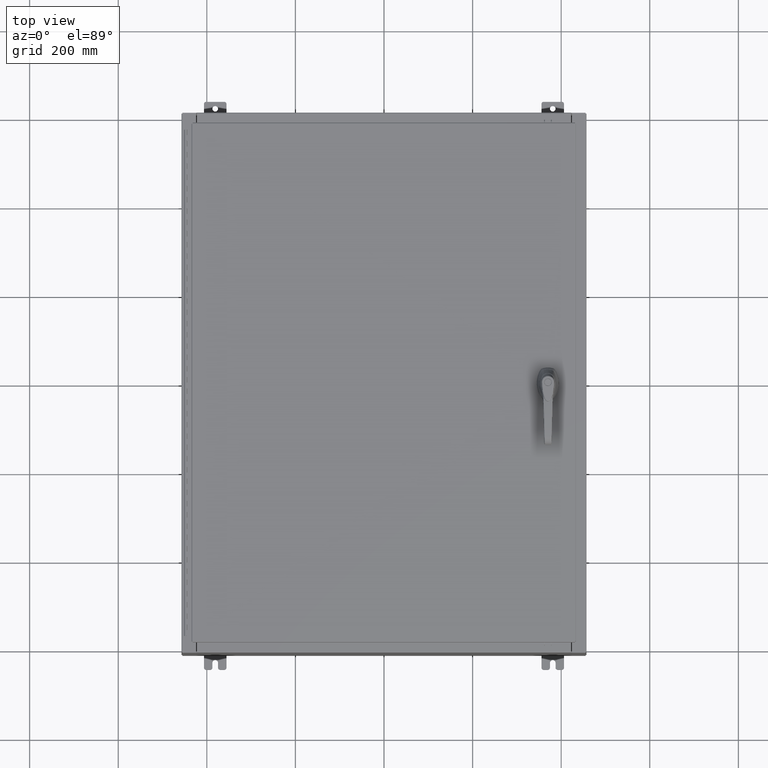
[diagram: clean part render]
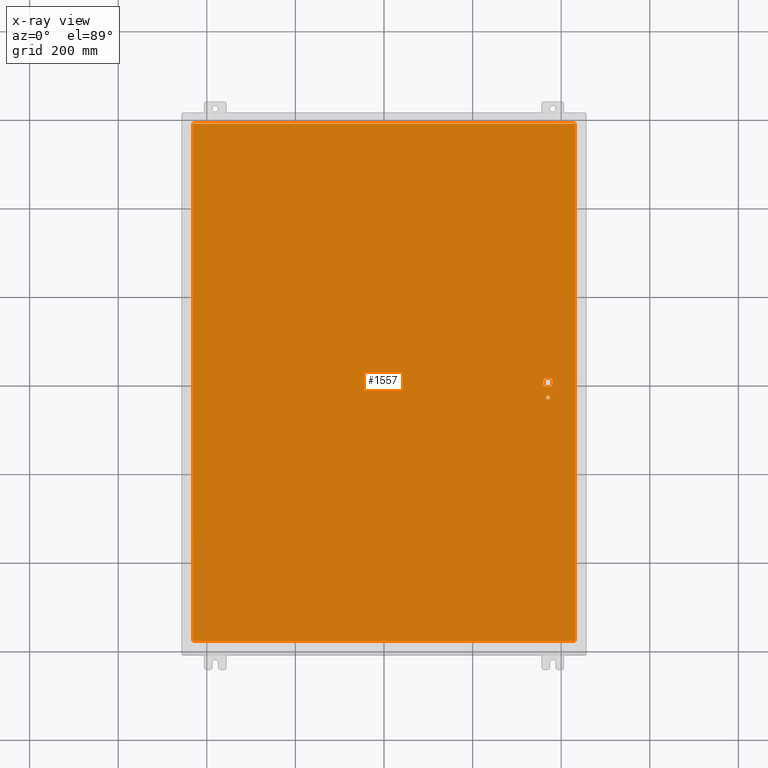
[diagram: x-ray — body ghosted, one internal face saturated and labeled with its STEP entity id]
A machine part, top view, then the same camera in x-ray: the body is ghosted and one INTERNAL B-rep face — a face not visible from any outside direction — is saturated and labeled: STEP entity #1557.
In plain terms, the highlighted planar face has unit normal (0, 0, -1).
Its self-contained STEP definition (entity closure, byte-faithful):
#1557 = ADVANCED_FACE ( 'NONE', ( #18862, #22107, #70731 ), #69592, .T. ) ;
#3670 = CARTESIAN_POINT ( 'NONE',  ( 0.0000000000000000000, 0.4029999999999252000, -0.07470000000000003000 ) ) ;
#4563 = CARTESIAN_POINT ( 'NONE',  ( -16.99029999999999400, 23.00630000000001000, -0.07470000000000129300 ) ) ;
#4565 = ORIENTED_EDGE ( 'NONE', *, *, #99361, .T. ) ;
#4814 = CARTESIAN_POINT ( 'NONE',  ( 14.57799999999999900, 0.0000000000000000000, -0.07470000000000003000 ) ) ;
#4945 = CARTESIAN_POINT ( 'NONE',  ( 14.37777262924369000, 0.4029999999999252000, -0.07470000000000003000 ) ) ;
#6797 = ORIENTED_EDGE ( 'NONE', *, *, #58652, .F. ) ;
#7295 = AXIS2_PLACEMENT_3D ( 'NONE', #115002, #52793, #125378 ) ;
#7421 = LINE ( 'NONE', #46599, #59254 ) ;
#7866 = CARTESIAN_POINT ( 'NONE',  ( 0.0000000000000000000, 0.0000000000000000000, -0.07470000000000000300 ) ) ;
#9014 = DIRECTION ( 'NONE',  ( -0.0000000000000000000, -0.0000000000000000000, 1.000000000000000000 ) ) ;
#9688 = EDGE_CURVE ( 'NONE', #9892, #12808, #122731, .T. ) ;
#9892 = VERTEX_POINT ( 'NONE', #93713 ) ;
#11298 = ORIENTED_EDGE ( 'NONE', *, *, #41066, .T. ) ;
#11322 = CARTESIAN_POINT ( 'NONE',  ( 16.99029999999999800, -23.00630000000000300, -0.07470000000000019700 ) ) ;
#11573 = ORIENTED_EDGE ( 'NONE', *, *, #44347, .F. ) ;
#12808 = VERTEX_POINT ( 'NONE', #126245 ) ;
#14811 = DIRECTION ( 'NONE',  ( 0.0000000000000000000, 0.0000000000000000000, -1.000000000000000000 ) ) ;
#15095 = EDGE_LOOP ( 'NONE', ( #4565, #83565 ) ) ;
#15178 = DIRECTION ( 'NONE',  ( -1.000000000000000000, -1.776356839400246700E-015, 0.0000000000000000000 ) ) ;
#16015 = EDGE_CURVE ( 'NONE', #86522, #125030, #7421, .T. ) ;
#18482 = ORIENTED_EDGE ( 'NONE', *, *, #65615, .T. ) ;
#18862 = FACE_BOUND ( 'NONE', #15095, .T. ) ;
#19869 = LINE ( 'NONE', #4563, #99295 ) ;
#22107 = FACE_OUTER_BOUND ( 'NONE', #57688, .T. ) ;
#22426 = CARTESIAN_POINT ( 'NONE',  ( 14.98099999999992700, 0.2002273707563075900, -0.07470000000000003000 ) ) ;
#25296 = ORIENTED_EDGE ( 'NONE', *, *, #98412, .T. ) ;
#27079 = CIRCLE ( 'NONE', #129720, 0.4499999999999168000 ) ;
#30964 = CARTESIAN_POINT ( 'NONE',  ( -16.99029999999999800, -23.00630000000000300, -0.07469999999999804600 ) ) ;
#31443 = CARTESIAN_POINT ( 'NONE',  ( 16.99029999999999800, 23.00630000000000300, -0.07470000000000000300 ) ) ;
#37334 = VECTOR ( 'NONE', #105379, 39.37007874015748100 ) ;
#37367 = CARTESIAN_POINT ( 'NONE',  ( 14.57799999999999900, -1.338000000000000100, -0.07470000000000003000 ) ) ;
#37752 = CARTESIAN_POINT ( 'NONE',  ( 14.17500000000007400, -0.2002273707563079800, -0.07470000000000003000 ) ) ;
#40733 = VECTOR ( 'NONE', #134586, 39.37007874015748100 ) ;
#41066 = EDGE_CURVE ( 'NONE', #57378, #57938, #49019, .T. ) ;
#41809 = VERTEX_POINT ( 'NONE', #31443 ) ;
#42478 = CARTESIAN_POINT ( 'NONE',  ( 14.98099999999992700, -0.2002273707563067300, -0.07470000000000003000 ) ) ;
#42849 = DIRECTION ( 'NONE',  ( -0.0000000000000000000, -0.0000000000000000000, 1.000000000000000000 ) ) ;
#43058 = CIRCLE ( 'NONE', #65418, 0.1715000000000011500 ) ;
#43689 = VECTOR ( 'NONE', #65702, 39.37007874015748100 ) ;
#44347 = EDGE_CURVE ( 'NONE', #98701, #41809, #100544, .T. ) ;
#45898 = ORIENTED_EDGE ( 'NONE', *, *, #54094, .T. ) ;
#46599 = CARTESIAN_POINT ( 'NONE',  ( 14.98099999999992700, 8.175868191945441800E-014, -0.07470000000000003000 ) ) ;
#47735 = DIRECTION ( 'NONE',  ( -1.000000000000000000, 0.0000000000000000000, 0.0000000000000000000 ) ) ;
#49019 = LINE ( 'NONE', #65171, #100911 ) ;
#49964 = EDGE_CURVE ( 'NONE', #131717, #98701, #109518, .T. ) ;
#50587 = CARTESIAN_POINT ( 'NONE',  ( -16.99029999999999400, 23.00630000000000300, -0.07470000000000000300 ) ) ;
#51784 = DIRECTION ( 'NONE',  ( 1.000000000000000000, -0.0000000000000000000, -0.0000000000000000000 ) ) ;
#52107 = CARTESIAN_POINT ( 'NONE',  ( 14.77822737075630900, -0.4029999999999252000, -0.07470000000000003000 ) ) ;
#52793 = DIRECTION ( 'NONE',  ( -0.0000000000000000000, -0.0000000000000000000, 1.000000000000000000 ) ) ;
#52844 = ORIENTED_EDGE ( 'NONE', *, *, #16015, .F. ) ;
#54094 = EDGE_CURVE ( 'NONE', #79332, #126265, #68222, .T. ) ;
#55651 = EDGE_CURVE ( 'NONE', #120661, #72681, #126458, .T. ) ;
#55661 = DIRECTION ( 'NONE',  ( -0.0000000000000000000, -0.0000000000000000000, 1.000000000000000000 ) ) ;
#57378 = VERTEX_POINT ( 'NONE', #108617 ) ;
#57688 = EDGE_LOOP ( 'NONE', ( #11573, #120079, #6797, #78938 ) ) ;
#57938 = VERTEX_POINT ( 'NONE', #37752 ) ;
#58652 = EDGE_CURVE ( 'NONE', #62963, #131717, #19869, .T. ) ;
#59254 = VECTOR ( 'NONE', #98261, 39.37007874015748100 ) ;
#61111 = EDGE_CURVE ( 'NONE', #41809, #62963, #95687, .T. ) ;
#62152 = ORIENTED_EDGE ( 'NONE', *, *, #128223, .T. ) ;
#62963 = VERTEX_POINT ( 'NONE', #50587 ) ;
#65171 = CARTESIAN_POINT ( 'NONE',  ( 14.17500000000007400, 0.0000000000000000000, -0.07470000000000003000 ) ) ;
#65291 = CIRCLE ( 'NONE', #7295, 0.4499999999999168000 ) ;
#65418 = AXIS2_PLACEMENT_3D ( 'NONE', #37367, #109911, #47735 ) ;
#65615 = EDGE_CURVE ( 'NONE', #72681, #57378, #27079, .T. ) ;
#65702 = DIRECTION ( 'NONE',  ( -1.000000000000000000, 0.0000000000000000000, 0.0000000000000000000 ) ) ;
#66569 = DIRECTION ( 'NONE',  ( 0.0000000000000000000, -1.000000000000000000, 0.0000000000000000000 ) ) ;
#68222 = LINE ( 'NONE', #122382, #40733 ) ;
#69592 = PLANE ( 'NONE',  #79716 ) ;
#69953 = CIRCLE ( 'NONE', #119396, 0.4499999999999168000 ) ;
#70731 = FACE_BOUND ( 'NONE', #126021, .T. ) ;
#71045 = CARTESIAN_POINT ( 'NONE',  ( 14.57799999999999900, -1.338000000000000100, -0.07470000000000003000 ) ) ;
#72681 = VERTEX_POINT ( 'NONE', #4945 ) ;
#73362 = DIRECTION ( 'NONE',  ( 0.0000000000000000000, 1.000000000000000000, 0.0000000000000000000 ) ) ;
#77268 = DIRECTION ( 'NONE',  ( -0.0000000000000000000, -0.0000000000000000000, 1.000000000000000000 ) ) ;
#78619 = AXIS2_PLACEMENT_3D ( 'NONE', #71045, #9014, #81481 ) ;
#78938 = ORIENTED_EDGE ( 'NONE', *, *, #61111, .F. ) ;
#79332 = VERTEX_POINT ( 'NONE', #82481 ) ;
#79716 = AXIS2_PLACEMENT_3D ( 'NONE', #7866, #14811, #119564 ) ;
#81481 = DIRECTION ( 'NONE',  ( -1.000000000000000000, 0.0000000000000000000, 0.0000000000000000000 ) ) ;
#82481 = CARTESIAN_POINT ( 'NONE',  ( 14.37777262924369000, -0.4029999999999250300, -0.07470000000000003000 ) ) ;
#83565 = ORIENTED_EDGE ( 'NONE', *, *, #9688, .T. ) ;
#86484 = EDGE_CURVE ( 'NONE', #86522, #120661, #65291, .T. ) ;
#86522 = VERTEX_POINT ( 'NONE', #22426 ) ;
#93713 = CARTESIAN_POINT ( 'NONE',  ( 14.40649999999999800, -1.338000000000000100, -0.07470000000000003000 ) ) ;
#94935 = CARTESIAN_POINT ( 'NONE',  ( 16.99029999999999800, 23.00630000000001000, -0.07469999999999804600 ) ) ;
#95687 = LINE ( 'NONE', #94935, #37334 ) ;
#98261 = DIRECTION ( 'NONE',  ( 5.457491617345625800E-015, -1.000000000000000000, 0.0000000000000000000 ) ) ;
#98412 = EDGE_CURVE ( 'NONE', #126265, #125030, #122726, .T. ) ;
#98701 = VERTEX_POINT ( 'NONE', #103520 ) ;
#99295 = VECTOR ( 'NONE', #66569, 39.37007874015748100 ) ;
#99361 = EDGE_CURVE ( 'NONE', #12808, #9892, #43058, .T. ) ;
#100544 = LINE ( 'NONE', #11322, #128199 ) ;
#100911 = VECTOR ( 'NONE', #116959, 39.37007874015748100 ) ;
#102002 = ORIENTED_EDGE ( 'NONE', *, *, #86484, .T. ) ;
#103520 = CARTESIAN_POINT ( 'NONE',  ( 16.99029999999999800, -23.00630000000000000, -0.07470000000000000300 ) ) ;
#104947 = CARTESIAN_POINT ( 'NONE',  ( 14.57799999999999900, 0.0000000000000000000, -0.07470000000000003000 ) ) ;
#105379 = DIRECTION ( 'NONE',  ( -1.000000000000000000, -0.0000000000000000000, -0.0000000000000000000 ) ) ;
#108617 = CARTESIAN_POINT ( 'NONE',  ( 14.17500000000007400, 0.2002273707563075900, -0.07470000000000003000 ) ) ;
#108847 = CARTESIAN_POINT ( 'NONE',  ( 14.77822737075630900, 0.4029999999999250300, -0.07470000000000003000 ) ) ;
#109518 = LINE ( 'NONE', #30964, #133898 ) ;
#109911 = DIRECTION ( 'NONE',  ( -0.0000000000000000000, -0.0000000000000000000, 1.000000000000000000 ) ) ;
#115002 = CARTESIAN_POINT ( 'NONE',  ( 14.57799999999999900, 0.0000000000000000000, -0.07470000000000003000 ) ) ;
#115452 = DIRECTION ( 'NONE',  ( -1.000000000000000000, -1.776356839400246700E-015, 0.0000000000000000000 ) ) ;
#116959 = DIRECTION ( 'NONE',  ( 0.0000000000000000000, -1.000000000000000000, 0.0000000000000000000 ) ) ;
#117861 = CARTESIAN_POINT ( 'NONE',  ( 14.57799999999999900, 0.0000000000000000000, -0.07470000000000003000 ) ) ;
#119396 = AXIS2_PLACEMENT_3D ( 'NONE', #104947, #42849, #115452 ) ;
#119564 = DIRECTION ( 'NONE',  ( -1.000000000000000000, 0.0000000000000000000, -0.0000000000000000000 ) ) ;
#120079 = ORIENTED_EDGE ( 'NONE', *, *, #49964, .F. ) ;
#120661 = VERTEX_POINT ( 'NONE', #108847 ) ;
#121923 = AXIS2_PLACEMENT_3D ( 'NONE', #4814, #77268, #15178 ) ;
#122382 = CARTESIAN_POINT ( 'NONE',  ( 0.0000000000000000000, -0.4029999999999252000, -0.07470000000000003000 ) ) ;
#122602 = ORIENTED_EDGE ( 'NONE', *, *, #55651, .T. ) ;
#122726 = CIRCLE ( 'NONE', #121923, 0.4499999999999168000 ) ;
#122731 = CIRCLE ( 'NONE', #78619, 0.1715000000000011500 ) ;
#125030 = VERTEX_POINT ( 'NONE', #42478 ) ;
#125378 = DIRECTION ( 'NONE',  ( -1.000000000000000000, -5.329070518200740300E-015, 0.0000000000000000000 ) ) ;
#126021 = EDGE_LOOP ( 'NONE', ( #25296, #52844, #102002, #122602, #18482, #11298, #62152, #45898 ) ) ;
#126245 = CARTESIAN_POINT ( 'NONE',  ( 14.74950000000000100, -1.338000000000000100, -0.07470000000000003000 ) ) ;
#126265 = VERTEX_POINT ( 'NONE', #52107 ) ;
#126458 = LINE ( 'NONE', #3670, #43689 ) ;
#128199 = VECTOR ( 'NONE', #73362, 39.37007874015748100 ) ;
#128223 = EDGE_CURVE ( 'NONE', #57938, #79332, #69953, .T. ) ;
#128249 = DIRECTION ( 'NONE',  ( -1.000000000000000000, -5.329070518200740300E-015, 0.0000000000000000000 ) ) ;
#129614 = CARTESIAN_POINT ( 'NONE',  ( -16.99029999999999800, -23.00630000000000000, -0.07470000000000000300 ) ) ;
#129720 = AXIS2_PLACEMENT_3D ( 'NONE', #117861, #55661, #128249 ) ;
#131717 = VERTEX_POINT ( 'NONE', #129614 ) ;
#133898 = VECTOR ( 'NONE', #51784, 39.37007874015748100 ) ;
#134586 = DIRECTION ( 'NONE',  ( 1.000000000000000000, 0.0000000000000000000, 0.0000000000000000000 ) ) ;